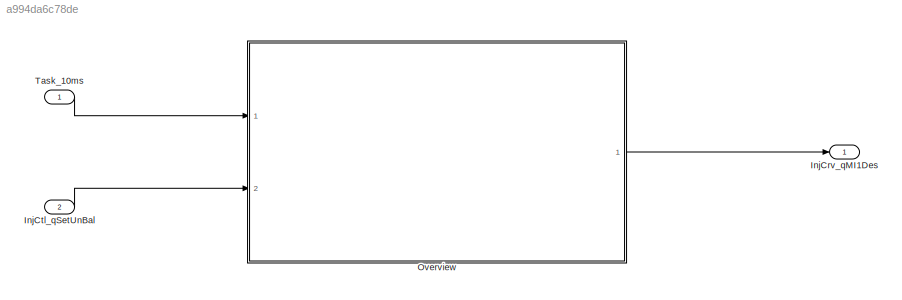
MODEL slx_a994da6c78de
KIND model
CONFIG AbsTol = auto
CONFIG EnableMultiTasking = off
CONFIG FixedStep = auto
CONFIG MaxStep = auto
CONFIG MinStep = auto
CONFIG RelTol = 1e-3
CONFIG SampleTimeConstraint = Unconstrained
CONFIG Solver = VariableStepAuto
CONFIG SolverName = VariableStepAuto
CONFIG StartTime = 0.0
CONFIG StopTime = 10.0
BLOCK [Outport] InjCrv_qMI1Des
  IconDisplay = Port number
BLOCK [Inport] InjCtl_qSetUnBal
  IconDisplay = Port number
  Port = 2
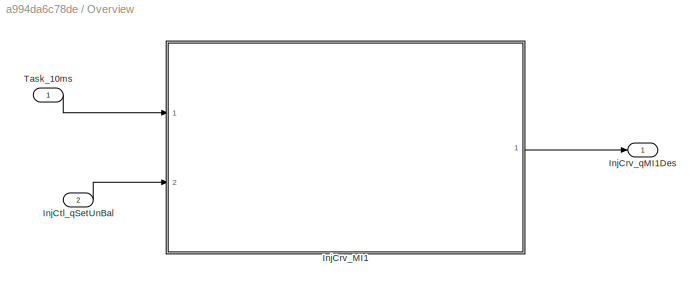
BLOCK [SubSystem] Overview
  Ports = [2, 1]
  RequestExecContextInheritance = off
BLOCK [ModelReference] Overview/InjCrv_MI1
  ModelNameDialog = InjCrv_MI1
  ModelReferenceVersion = 1.54
  Ports = [2, 1]
BLOCK [Outport] Overview/InjCrv_qMI1Des
  IconDisplay = Port number
BLOCK [Inport] Overview/InjCtl_qSetUnBal
  IconDisplay = Port number
  Port = 2
BLOCK [Inport] Overview/Task_10ms
  IconDisplay = Port number
BLOCK [Inport] Task_10ms
  IconDisplay = Port number
  OutputFunctionCall = on
LINE InjCtl_qSetUnBal:1 -> Overview:2
LINE Overview/InjCrv_MI1:1 -> Overview/InjCrv_qMI1Des:1
LINE Overview/InjCtl_qSetUnBal:1 -> Overview/InjCrv_MI1:2
LINE Overview/Task_10ms:1 -> Overview/InjCrv_MI1:1
LINE Overview:1 -> InjCrv_qMI1Des:1
LINE Task_10ms:1 -> Overview:1
